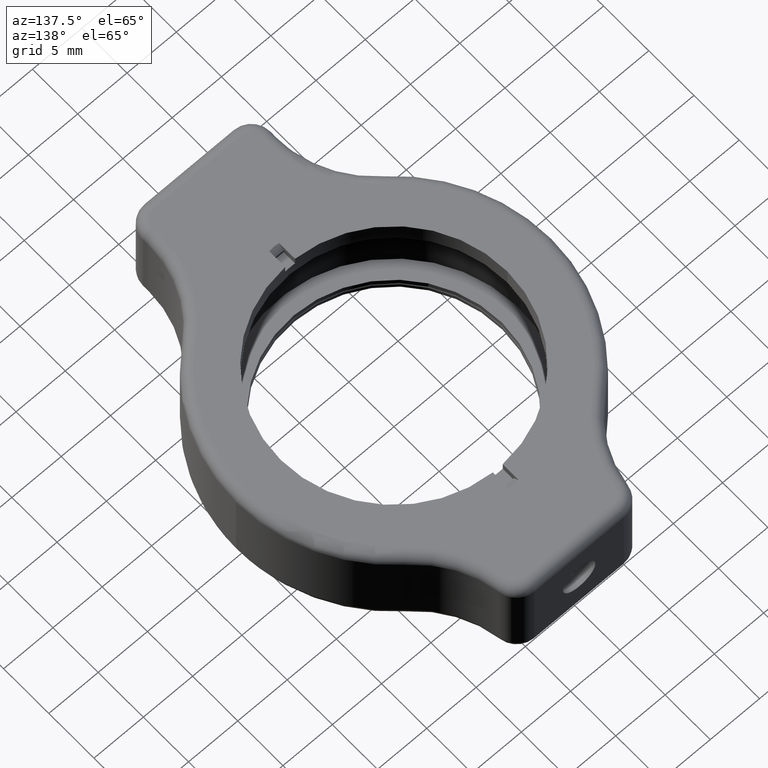
[diagram: clean part render]
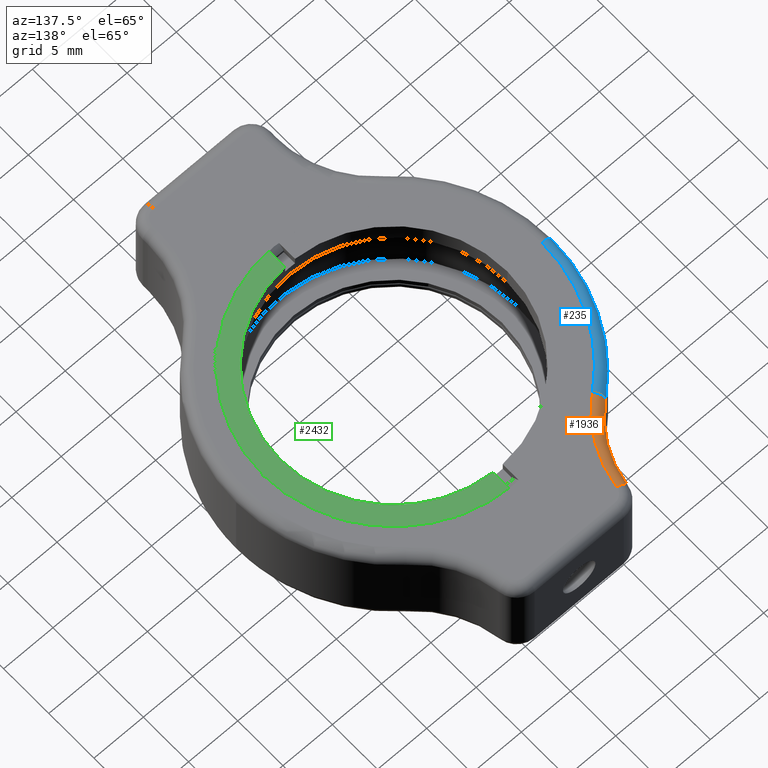
[diagram: same view with three faces highlighted in distinct colors, each labeled with its STEP entity id]
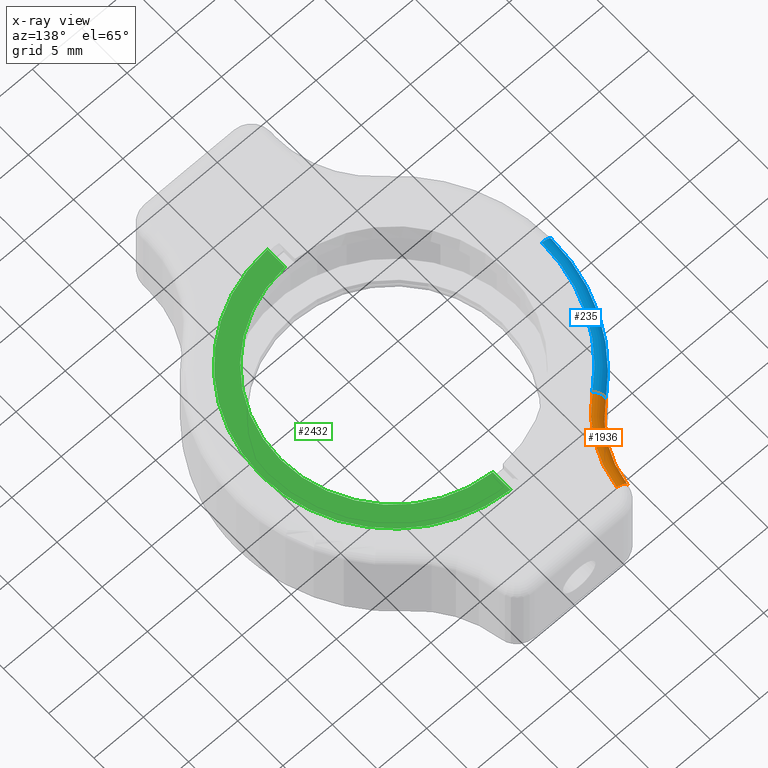
[diagram: x-ray of the same camera — body ghosted, the three highlighted faces saturated]
A machine part, auxiliary view with three faces highlighted in distinct colors.
The next image is the same camera in x-ray (body ghosted, the three faces saturated) — at least one of them is partly hidden behind the body in this view.
Their STEP definitions:

[orange] entity #1936 — the highlighted toroidal blend (fillet) surface has major radius 11 mm and minor (blend) radius 1 mm.
#24 = DIRECTION ( 'NONE',  ( 0.7758987121360991800, 0.6308575025356699700, -1.364742114347105600E-015 ) ) ;
#292 = CARTESIAN_POINT ( 'NONE',  ( -5.509770493407258700, 18.63944720962821200, 1.333055885523767800E-016 ) ) ;
#312 = DIRECTION ( 'NONE',  ( -2.419439951480636200E-017, 5.703514230536423600E-031, -1.000000000000000000 ) ) ;
#423 = DIRECTION ( 'NONE',  ( 0.1394472096282150000, 0.9902295065927417800, -1.243250156017321500E-016 ) ) ;
#540 = DIRECTION ( 'NONE',  ( -1.000000000000000000, 0.0000000000000000000, 2.419439951480629700E-017 ) ) ;
#575 = VERTEX_POINT ( 'NONE', #2369 ) ;
#627 = AXIS2_PLACEMENT_3D ( 'NONE', #1047, #24, #2465 ) ;
#631 = AXIS2_PLACEMENT_3D ( 'NONE', #1519, #2345, #1127 ) ;
#714 = VERTEX_POINT ( 'NONE', #1567 ) ;
#751 = CARTESIAN_POINT ( 'NONE',  ( -16.40229506592741900, 20.17336651553858600, 3.968436797847736300E-016 ) ) ;
#784 = DIRECTION ( 'NONE',  ( 2.419439951480636200E-017, -5.703514230536423600E-031, 1.000000000000000000 ) ) ;
#786 = ORIENTED_EDGE ( 'NONE', *, *, #1168, .F. ) ;
#1023 = EDGE_CURVE ( 'NONE', #1635, #714, #1375, .T. ) ;
#1024 = EDGE_LOOP ( 'NONE', ( #1108, #2398, #786, #2515 ) ) ;
#1047 = CARTESIAN_POINT ( 'NONE',  ( -9.462862538035047100, 11.63848068204148900, -0.9999999999999965600 ) ) ;
#1093 = CIRCLE ( 'NONE', #1371, 11.00000000000000400 ) ;
#1108 = ORIENTED_EDGE ( 'NONE', *, *, #2548, .T. ) ;
#1115 = AXIS2_PLACEMENT_3D ( 'NONE', #1824, #423, #2233 ) ;
#1127 = DIRECTION ( 'NONE',  ( -1.000000000000000000, -3.493039327282197700E-048, 2.419439951480636200E-017 ) ) ;
#1168 = EDGE_CURVE ( 'NONE', #714, #1918, #2491, .T. ) ;
#1371 = AXIS2_PLACEMENT_3D ( 'NONE', #751, #312, #540 ) ;
#1375 = CIRCLE ( 'NONE', #2524, 10.00000000000000200 ) ;
#1381 = CARTESIAN_POINT ( 'NONE',  ( -16.40229506592741900, 20.17336651553858600, -0.9999999999999963400 ) ) ;
#1413 = CARTESIAN_POINT ( 'NONE',  ( -10.09372004057071900, 12.41437939417759200, -0.9999999999999965600 ) ) ;
#1519 = CARTESIAN_POINT ( 'NONE',  ( -16.40229506592741900, 20.17336651553858600, -0.9999999999999963400 ) ) ;
#1523 = EDGE_CURVE ( 'NONE', #1918, #575, #1093, .T. ) ;
#1567 = CARTESIAN_POINT ( 'NONE',  ( -6.500000000000001800, 18.77889441925642400, -0.9999999999999965600 ) ) ;
#1595 = FACE_OUTER_BOUND ( 'NONE', #1024, .T. ) ;
#1635 = VERTEX_POINT ( 'NONE', #1413 ) ;
#1744 = TOROIDAL_SURFACE ( 'NONE', #631, 11.00000000000000400, 1.000000000000000000 ) ;
#1824 = CARTESIAN_POINT ( 'NONE',  ( -5.509770493407259600, 18.63944720962821200, -0.9999999999999965600 ) ) ;
#1918 = VERTEX_POINT ( 'NONE', #292 ) ;
#1936 = ADVANCED_FACE ( 'NONE', ( #1595 ), #1744, .T. ) ;
#2023 = CIRCLE ( 'NONE', #627, 0.9999999999999996700 ) ;
#2233 = DIRECTION ( 'NONE',  ( 0.9902295065927417800, -0.1394472096282150200, 0.0000000000000000000 ) ) ;
#2345 = DIRECTION ( 'NONE',  ( -2.419439951480636200E-017, 5.703514230536423600E-031, -1.000000000000000000 ) ) ;
#2369 = CARTESIAN_POINT ( 'NONE',  ( -9.462862538035045300, 11.63848068204148900, 2.289482767989077800E-016 ) ) ;
#2398 = ORIENTED_EDGE ( 'NONE', *, *, #1523, .F. ) ;
#2465 = DIRECTION ( 'NONE',  ( 0.6308575025356698600, -0.7758987121360991800, 0.0000000000000000000 ) ) ;
#2491 = CIRCLE ( 'NONE', #1115, 0.9999999999999995600 ) ;
#2515 = ORIENTED_EDGE ( 'NONE', *, *, #1023, .F. ) ;
#2524 = AXIS2_PLACEMENT_3D ( 'NONE', #1381, #784, #2619 ) ;
#2548 = EDGE_CURVE ( 'NONE', #1635, #575, #2023, .T. ) ;
#2619 = DIRECTION ( 'NONE',  ( -1.000000000000000000, 3.469446951953613400E-015, 2.168404344971008600E-017 ) ) ;

[blue] entity #235 — the highlighted toroidal blend (fillet) surface has major radius 15 mm and minor (blend) radius 1 mm.
#6 = DIRECTION ( 'NONE',  ( 2.419439951480636200E-017, -5.703514230536423600E-031, 1.000000000000000000 ) ) ;
#24 = DIRECTION ( 'NONE',  ( 0.7758987121360991800, 0.6308575025356699700, -1.364742114347105600E-015 ) ) ;
#235 = ADVANCED_FACE ( 'NONE', ( #1002 ), #1194, .T. ) ;
#310 = AXIS2_PLACEMENT_3D ( 'NONE', #820, #1220, #1238 ) ;
#375 = CARTESIAN_POINT ( 'NONE',  ( -15.00000000000000000, -4.163336342344328200E-016, -0.9999999999999963400 ) ) ;
#380 = AXIS2_PLACEMENT_3D ( 'NONE', #1667, #1269, #855 ) ;
#394 = CIRCLE ( 'NONE', #1803, 1.000000000000000900 ) ;
#446 = ORIENTED_EDGE ( 'NONE', *, *, #1569, .F. ) ;
#571 = CARTESIAN_POINT ( 'NONE',  ( -16.00000000000000000, -4.440892098500616800E-016, -0.9999999999999963400 ) ) ;
#575 = VERTEX_POINT ( 'NONE', #2369 ) ;
#620 = ORIENTED_EDGE ( 'NONE', *, *, #1075, .F. ) ;
#627 = AXIS2_PLACEMENT_3D ( 'NONE', #1047, #24, #2465 ) ;
#682 = VERTEX_POINT ( 'NONE', #571 ) ;
#810 = EDGE_CURVE ( 'NONE', #682, #1635, #838, .T. ) ;
#820 = CARTESIAN_POINT ( 'NONE',  ( -2.419439951480629100E-017, 5.703514230536408700E-031, -0.9999999999999967800 ) ) ;
#838 = CIRCLE ( 'NONE', #380, 16.00000000000000000 ) ;
#855 = DIRECTION ( 'NONE',  ( -1.000000000000000000, -2.775557561562889500E-017, 2.710505431213761100E-017 ) ) ;
#924 = ORIENTED_EDGE ( 'NONE', *, *, #2548, .F. ) ;
#1002 = FACE_OUTER_BOUND ( 'NONE', #1586, .T. ) ;
#1015 = ORIENTED_EDGE ( 'NONE', *, *, #810, .F. ) ;
#1047 = CARTESIAN_POINT ( 'NONE',  ( -9.462862538035047100, 11.63848068204148900, -0.9999999999999965600 ) ) ;
#1075 = EDGE_CURVE ( 'NONE', #575, #1833, #2071, .T. ) ;
#1091 = CARTESIAN_POINT ( 'NONE',  ( -15.00000000000000000, -4.302114220422475700E-016, 3.629159927220950300E-016 ) ) ;
#1194 = TOROIDAL_SURFACE ( 'NONE', #310, 15.00000000000000000, 1.000000000000000000 ) ;
#1220 = DIRECTION ( 'NONE',  ( -2.419439951480636200E-017, 5.703514230536423600E-031, -1.000000000000000000 ) ) ;
#1238 = DIRECTION ( 'NONE',  ( -1.000000000000000000, -2.775557561562889500E-017, 2.419439951480636200E-017 ) ) ;
#1269 = DIRECTION ( 'NONE',  ( -2.419439951480636200E-017, 5.703514230536423600E-031, -1.000000000000000000 ) ) ;
#1413 = CARTESIAN_POINT ( 'NONE',  ( -10.09372004057071900, 12.41437939417759200, -0.9999999999999965600 ) ) ;
#1417 = DIRECTION ( 'NONE',  ( -1.000000000000000000, 8.854028621385612400E-015, 2.419439951480629700E-017 ) ) ;
#1569 = EDGE_CURVE ( 'NONE', #1833, #682, #394, .T. ) ;
#1586 = EDGE_LOOP ( 'NONE', ( #446, #620, #924, #1015 ) ) ;
#1601 = DIRECTION ( 'NONE',  ( 2.775557561562889800E-017, -1.000000000000000000, -5.710229525388502600E-031 ) ) ;
#1635 = VERTEX_POINT ( 'NONE', #1413 ) ;
#1667 = CARTESIAN_POINT ( 'NONE',  ( -2.419439951480629100E-017, 5.703514230536408700E-031, -0.9999999999999967800 ) ) ;
#1803 = AXIS2_PLACEMENT_3D ( 'NONE', #375, #1601, #2623 ) ;
#1833 = VERTEX_POINT ( 'NONE', #1091 ) ;
#2023 = CIRCLE ( 'NONE', #627, 0.9999999999999996700 ) ;
#2071 = CIRCLE ( 'NONE', #2475, 15.00000000000000000 ) ;
#2369 = CARTESIAN_POINT ( 'NONE',  ( -9.462862538035045300, 11.63848068204148900, 2.289482767989077800E-016 ) ) ;
#2429 = CARTESIAN_POINT ( 'NONE',  ( -0.0000000000000000000, 0.0000000000000000000, 0.0000000000000000000 ) ) ;
#2465 = DIRECTION ( 'NONE',  ( 0.6308575025356698600, -0.7758987121360991800, 0.0000000000000000000 ) ) ;
#2475 = AXIS2_PLACEMENT_3D ( 'NONE', #2429, #6, #1417 ) ;
#2548 = EDGE_CURVE ( 'NONE', #1635, #575, #2023, .T. ) ;
#2623 = DIRECTION ( 'NONE',  ( 1.000000000000000000, 2.775557561562886400E-017, 0.0000000000000000000 ) ) ;

[green] entity #2432 — the highlighted planar face has unit normal (0, -0, 1).
#17 = AXIS2_PLACEMENT_3D ( 'NONE', #2460, #143, #1185 ) ;
#25 = VECTOR ( 'NONE', #62, 1000.000000000000000 ) ;
#38 = VERTEX_POINT ( 'NONE', #1119 ) ;
#62 = DIRECTION ( 'NONE',  ( -1.222249139698839300E-016, 1.000000000000000000, 9.188110323064798500E-032 ) ) ;
#80 = CARTESIAN_POINT ( 'NONE',  ( 0.0000000000000000000, 1.180835797152413200E-032, 0.0000000000000000000 ) ) ;
#143 = DIRECTION ( 'NONE',  ( 1.466590794295416600E-016, -7.395570986446987900E-032, 1.000000000000000000 ) ) ;
#188 = CARTESIAN_POINT ( 'NONE',  ( 0.5000000000000013300, -11.48912529307605500, 0.0000000000000000000 ) ) ;
#230 = VERTEX_POINT ( 'NONE', #188 ) ;
#247 = AXIS2_PLACEMENT_3D ( 'NONE', #80, #1916, #1509 ) ;
#293 = EDGE_CURVE ( 'NONE', #374, #1787, #1347, .T. ) ;
#374 = VERTEX_POINT ( 'NONE', #2295 ) ;
#376 = ORIENTED_EDGE ( 'NONE', *, *, #1335, .F. ) ;
#451 = CIRCLE ( 'NONE', #17, 11.50000000000000000 ) ;
#455 = VECTOR ( 'NONE', #1979, 1000.000000000000000 ) ;
#602 = FACE_OUTER_BOUND ( 'NONE', #945, .T. ) ;
#667 = EDGE_CURVE ( 'NONE', #230, #1576, #451, .T. ) ;
#834 = DIRECTION ( 'NONE',  ( 1.466590794295416600E-016, -7.395570986446987900E-032, 1.000000000000000000 ) ) ;
#881 = CARTESIAN_POINT ( 'NONE',  ( 0.4999999999999981700, 14.19287950085398000, 0.0000000000000000000 ) ) ;
#882 = ORIENTED_EDGE ( 'NONE', *, *, #1980, .F. ) ;
#917 = AXIS2_PLACEMENT_3D ( 'NONE', #1921, #1131, #1887 ) ;
#921 = CIRCLE ( 'NONE', #247, 13.46250000000000000 ) ;
#945 = EDGE_LOOP ( 'NONE', ( #882, #1198, #1949, #953, #376, #1401 ) ) ;
#953 = ORIENTED_EDGE ( 'NONE', *, *, #1215, .F. ) ;
#1119 = CARTESIAN_POINT ( 'NONE',  ( 0.4999999999999982800, 13.45321174478421800, 0.0000000000000000000 ) ) ;
#1131 = DIRECTION ( 'NONE',  ( 1.466590794295416600E-016, -7.395570986446987900E-032, 1.000000000000000000 ) ) ;
#1141 = AXIS2_PLACEMENT_3D ( 'NONE', #2291, #1459, #2066 ) ;
#1185 = DIRECTION ( 'NONE',  ( 1.000000000000000000, 4.648286452334253400E-049, -1.466590794295416600E-016 ) ) ;
#1191 = CIRCLE ( 'NONE', #917, 11.50000000000000000 ) ;
#1198 = ORIENTED_EDGE ( 'NONE', *, *, #293, .T. ) ;
#1215 = EDGE_CURVE ( 'NONE', #2085, #38, #2391, .T. ) ;
#1223 = LINE ( 'NONE', #2190, #455 ) ;
#1234 = AXIS2_PLACEMENT_3D ( 'NONE', #1431, #834, #2254 ) ;
#1251 = PLANE ( 'NONE',  #1141 ) ;
#1293 = CARTESIAN_POINT ( 'NONE',  ( 13.46250000000000000, 1.648680753352124300E-015, -1.974397856820204900E-015 ) ) ;
#1335 = EDGE_CURVE ( 'NONE', #1576, #2085, #1191, .T. ) ;
#1347 = CIRCLE ( 'NONE', #1234, 13.46250000000000000 ) ;
#1393 = CARTESIAN_POINT ( 'NONE',  ( 0.4999999999999985000, 11.48912529307605500, 0.0000000000000000000 ) ) ;
#1401 = ORIENTED_EDGE ( 'NONE', *, *, #667, .F. ) ;
#1431 = CARTESIAN_POINT ( 'NONE',  ( 0.0000000000000000000, 1.180835797152413200E-032, 0.0000000000000000000 ) ) ;
#1459 = DIRECTION ( 'NONE',  ( 1.466590794295416600E-016, -7.395570986446987900E-032, 1.000000000000000000 ) ) ;
#1509 = DIRECTION ( 'NONE',  ( 1.000000000000000000, 4.963351365073715200E-049, -1.466590794295416900E-016 ) ) ;
#1576 = VERTEX_POINT ( 'NONE', #2007 ) ;
#1787 = VERTEX_POINT ( 'NONE', #1293 ) ;
#1887 = DIRECTION ( 'NONE',  ( 1.000000000000000000, 4.648286452334253400E-049, -1.466590794295416600E-016 ) ) ;
#1916 = DIRECTION ( 'NONE',  ( 1.466590794295416600E-016, -7.395570986446987900E-032, 1.000000000000000000 ) ) ;
#1921 = CARTESIAN_POINT ( 'NONE',  ( 0.0000000000000000000, 1.180835797152413200E-032, 0.0000000000000000000 ) ) ;
#1949 = ORIENTED_EDGE ( 'NONE', *, *, #2601, .T. ) ;
#1979 = DIRECTION ( 'NONE',  ( -1.222249139698839300E-016, 1.000000000000000000, 9.188110323064798500E-032 ) ) ;
#1980 = EDGE_CURVE ( 'NONE', #374, #230, #1223, .T. ) ;
#2007 = CARTESIAN_POINT ( 'NONE',  ( 11.50000000000000000, 1.408343819019456200E-015, -1.686579413439729200E-015 ) ) ;
#2066 = DIRECTION ( 'NONE',  ( 1.000000000000000000, 5.068396262810487500E-049, -1.466590794295416600E-016 ) ) ;
#2085 = VERTEX_POINT ( 'NONE', #1393 ) ;
#2190 = CARTESIAN_POINT ( 'NONE',  ( 0.4999999999999981700, 14.19287950085398000, 0.0000000000000000000 ) ) ;
#2254 = DIRECTION ( 'NONE',  ( 1.000000000000000000, 4.963351365073715200E-049, -1.466590794295416900E-016 ) ) ;
#2291 = CARTESIAN_POINT ( 'NONE',  ( 0.0000000000000000000, 1.180835797152413200E-032, 0.0000000000000000000 ) ) ;
#2295 = CARTESIAN_POINT ( 'NONE',  ( 0.5000000000000015500, -13.45321174478421800, 0.0000000000000000000 ) ) ;
#2391 = LINE ( 'NONE', #881, #25 ) ;
#2432 = ADVANCED_FACE ( 'NONE', ( #602 ), #1251, .T. ) ;
#2460 = CARTESIAN_POINT ( 'NONE',  ( 0.0000000000000000000, 1.180835797152413200E-032, 0.0000000000000000000 ) ) ;
#2601 = EDGE_CURVE ( 'NONE', #1787, #38, #921, .T. ) ;